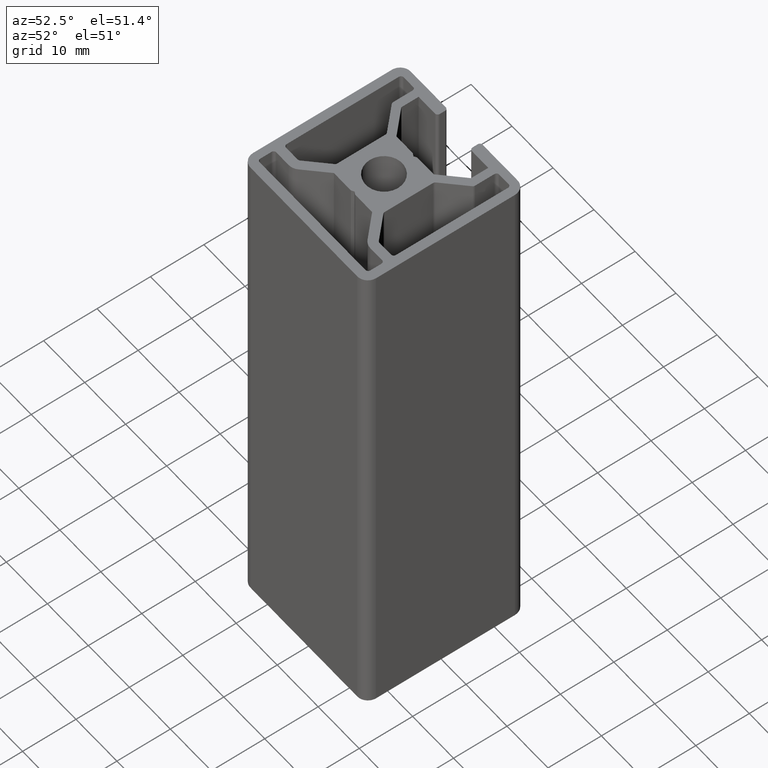
[diagram: clean part render]
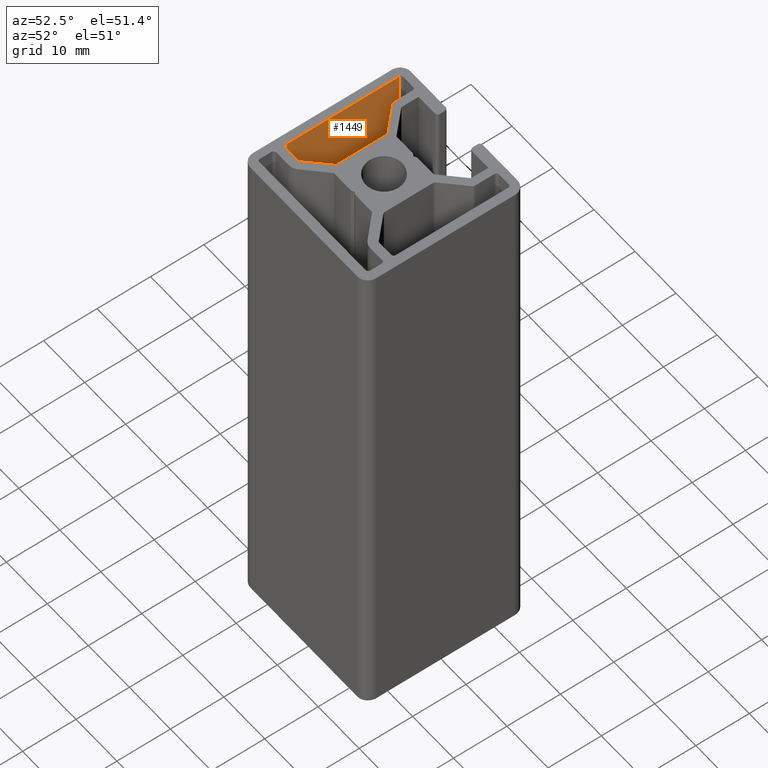
[diagram: same view with one face highlighted and labeled with its STEP entity id]
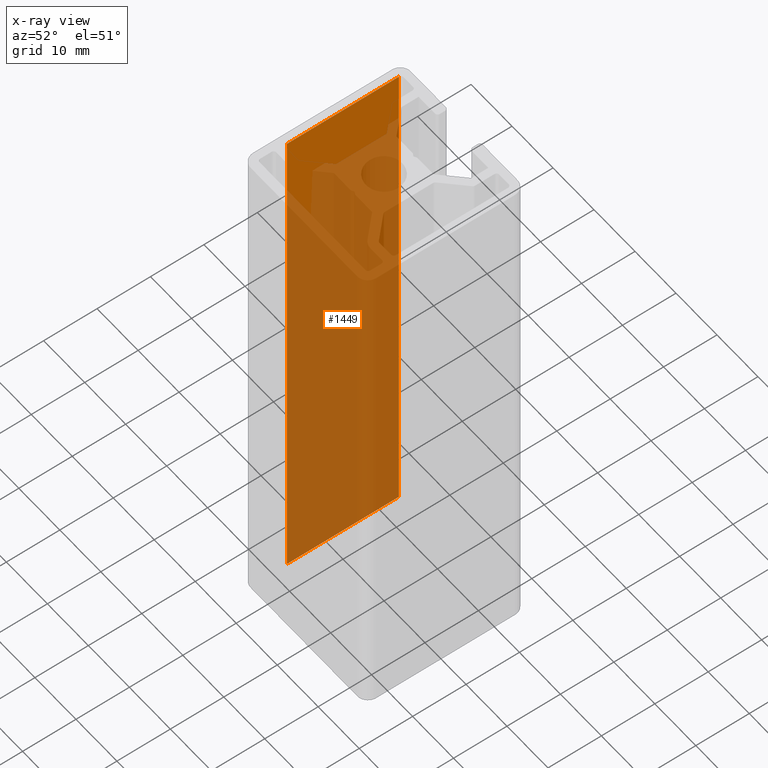
[diagram: x-ray of the same camera — body ghosted, the highlighted face saturated]
A machine part, auxiliary view. The second image highlights one B-rep face of the part: STEP entity #1449.
The next image is the same camera in x-ray: the body ghosted, the highlighted face saturated — about 88% of this face is hidden behind the body in this view.
In plain terms, the highlighted planar face has unit normal (-1, 0, 0).
Its self-contained STEP definition (entity closure, byte-faithful):
#164=FACE_OUTER_BOUND('',#238,.T.);
#238=EDGE_LOOP('',(#1138,#1139,#1140,#1141));
#383=LINE('',#2342,#537);
#384=LINE('',#2346,#538);
#385=LINE('',#2348,#539);
#386=LINE('',#2349,#540);
#537=VECTOR('',#1909,100.);
#538=VECTOR('',#1914,20.9999999833663);
#539=VECTOR('',#1915,100.);
#540=VECTOR('',#1916,20.9999999833663);
#682=VERTEX_POINT('',#2339);
#683=VERTEX_POINT('',#2341);
#684=VERTEX_POINT('',#2345);
#685=VERTEX_POINT('',#2347);
#874=EDGE_CURVE('',#683,#682,#383,.T.);
#876=EDGE_CURVE('',#684,#682,#384,.T.);
#877=EDGE_CURVE('',#685,#684,#385,.T.);
#878=EDGE_CURVE('',#683,#685,#386,.T.);
#1138=ORIENTED_EDGE('',*,*,#876,.F.);
#1139=ORIENTED_EDGE('',*,*,#877,.F.);
#1140=ORIENTED_EDGE('',*,*,#878,.F.);
#1141=ORIENTED_EDGE('',*,*,#874,.T.);
#1384=PLANE('',#1566);
#1449=ADVANCED_FACE('',(#164),#1384,.F.);
#1566=AXIS2_PLACEMENT_3D('',#2344,#1912,#1913);
#1909=DIRECTION('',(0.,0.,1.));
#1912=DIRECTION('center_axis',(-1.,1.9032394722935E-15,0.));
#1913=DIRECTION('ref_axis',(0.,0.,1.));
#1914=DIRECTION('',(1.9032394722935E-15,1.,0.));
#1915=DIRECTION('',(0.,0.,1.));
#1916=DIRECTION('',(-1.9032394722935E-15,-1.,0.));
#2339=CARTESIAN_POINT('',(-13.2999999696185,12.9999999833852,100.));
#2341=CARTESIAN_POINT('',(-13.2999999696185,12.9999999833852,0.));
#2342=CARTESIAN_POINT('',(-13.2999999696185,12.9999999833852,0.));
#2344=CARTESIAN_POINT('Origin',(-13.2999999696185,-7.99999999998112,0.));
#2345=CARTESIAN_POINT('',(-13.2999999696185,-7.99999999998112,100.));
#2346=CARTESIAN_POINT('',(-13.2999999696185,-3.99999999979582,100.));
#2347=CARTESIAN_POINT('',(-13.2999999696185,-7.99999999998112,0.));
#2348=CARTESIAN_POINT('',(-13.2999999696185,-7.99999999998112,0.));
#2349=CARTESIAN_POINT('',(-13.2999999696185,-3.99999999979582,0.));